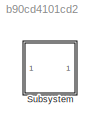
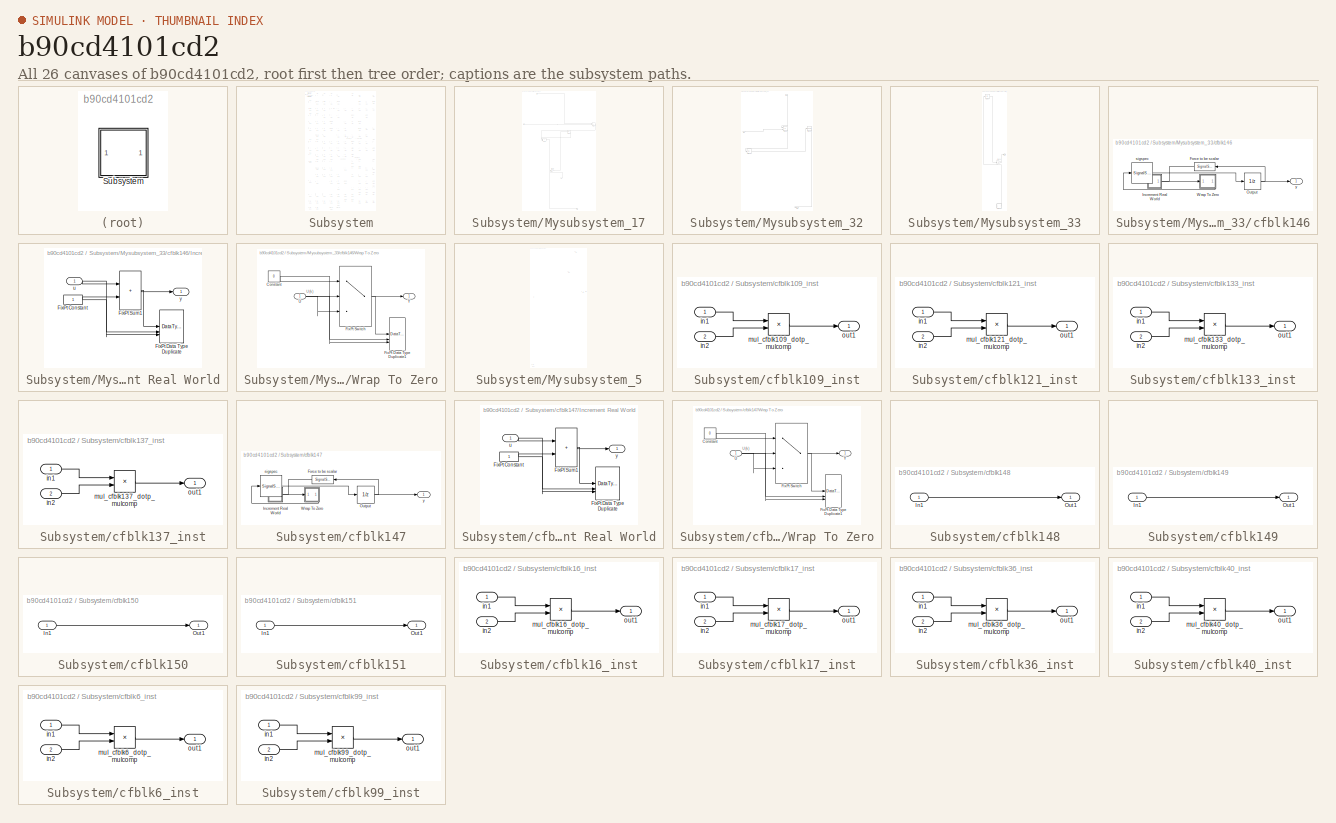
[diagram: thumbnail index - all 26 canvases of the model, root first then tree order]
MODEL slx_b90cd4101cd2
KIND model
CONFIG AbsTol = auto
CONFIG EnableMultiTasking = off
CONFIG FixedStep = auto
CONFIG MaxStep = auto
CONFIG MinStep = auto
CONFIG RelTol = 1e-3
CONFIG SampleTimeConstraint = Unconstrained
CONFIG SolverName = VariableStepAuto
CONFIG StartTime = 0.0
CONFIG StopTime = 10.0
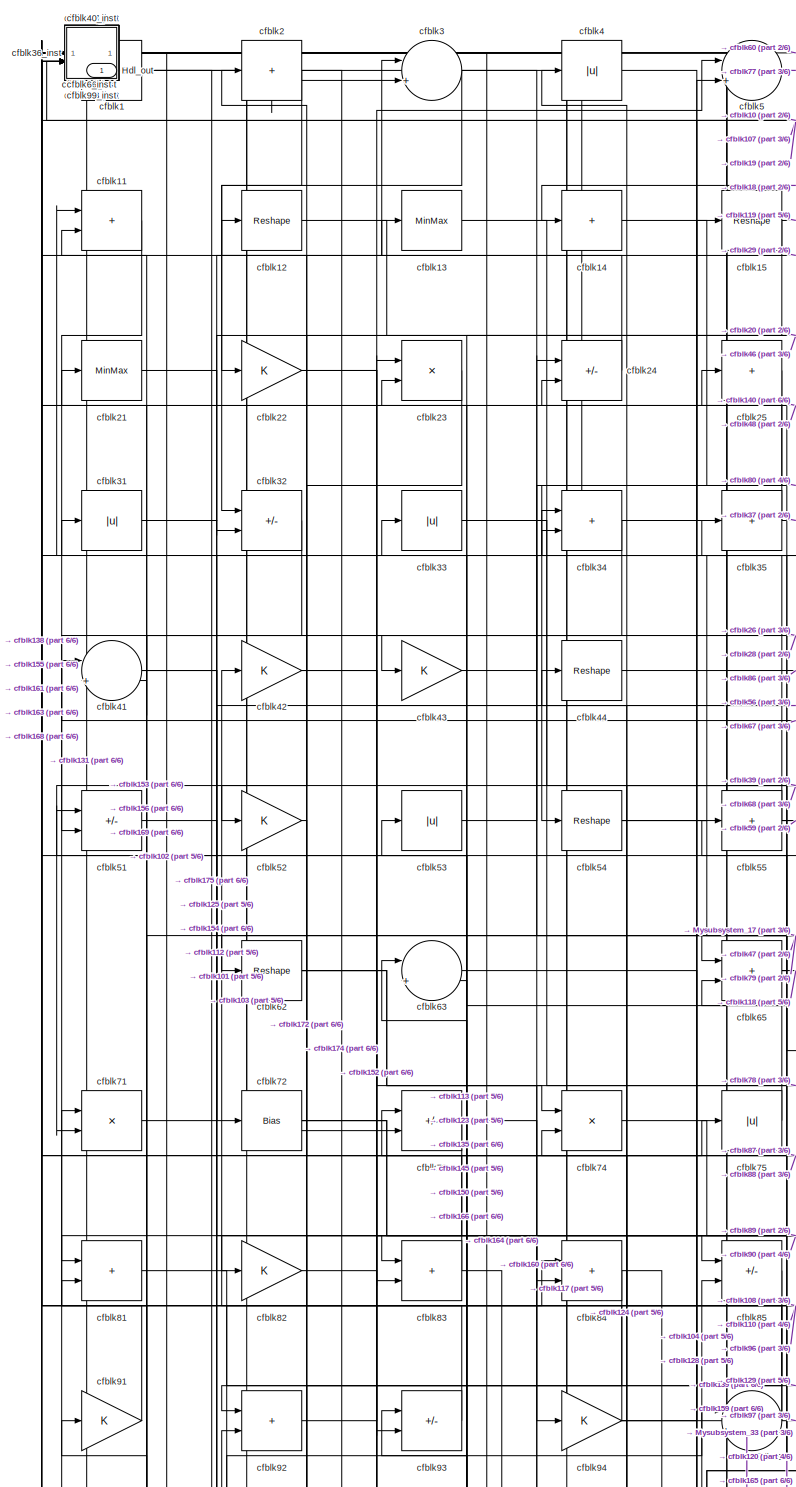
[diagram: Subsystem - part 1/6, top left region]
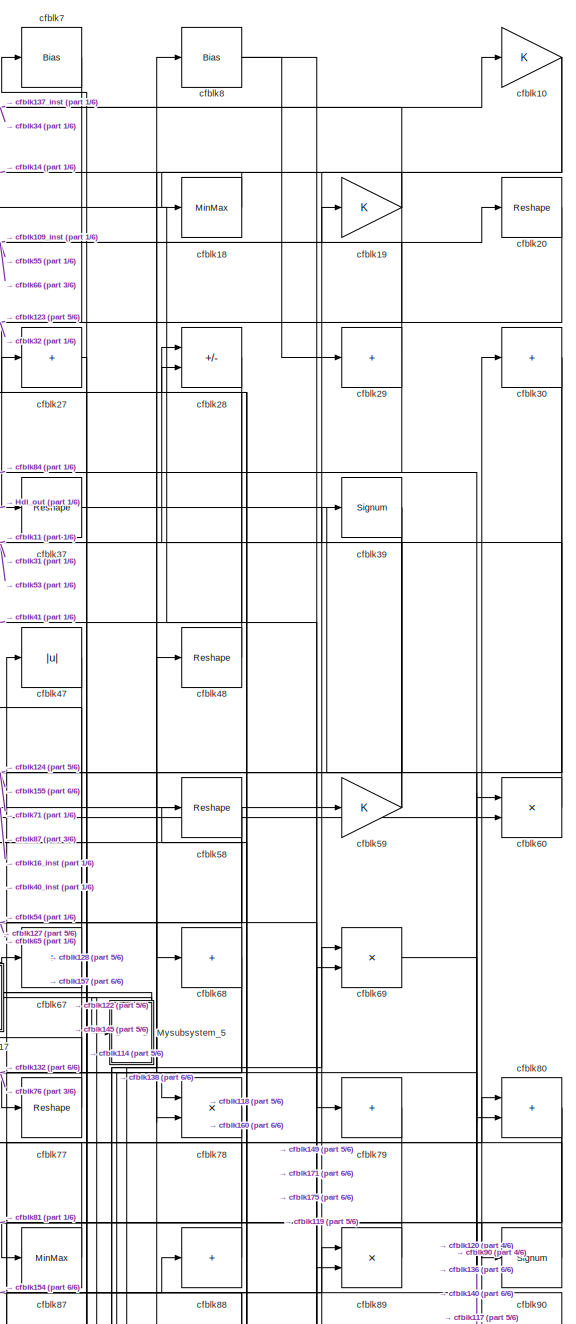
[diagram: Subsystem - part 2/6, top right region]
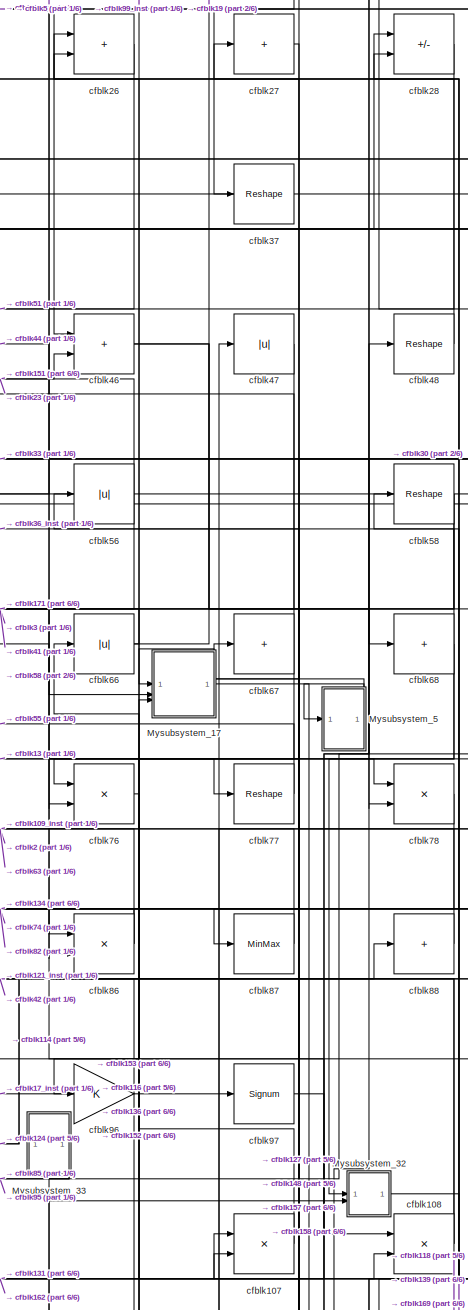
[diagram: Subsystem - part 3/6, central region]
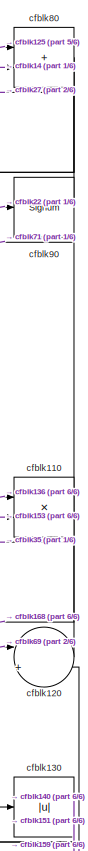
[diagram: Subsystem - part 4/6, middle right region]
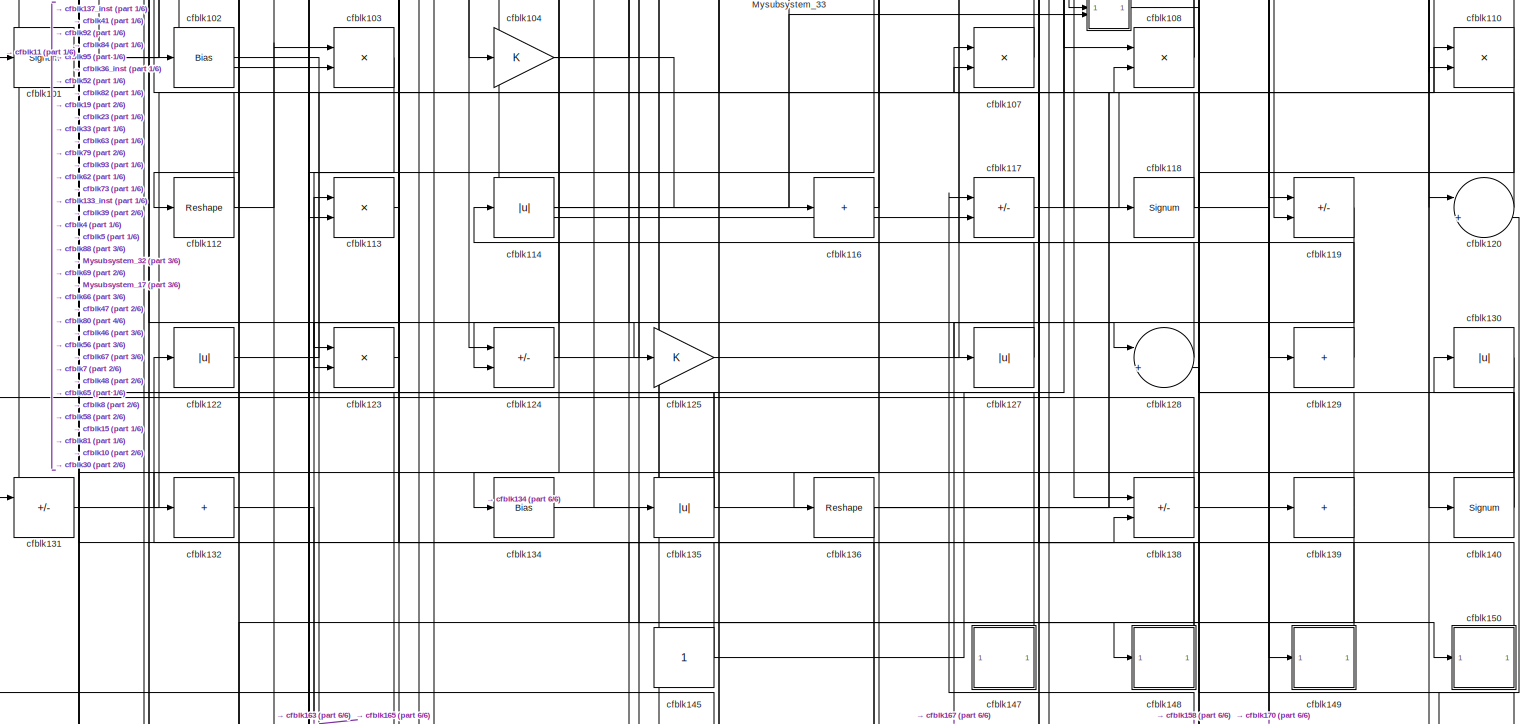
[diagram: Subsystem - part 5/6, full width, bottom band]
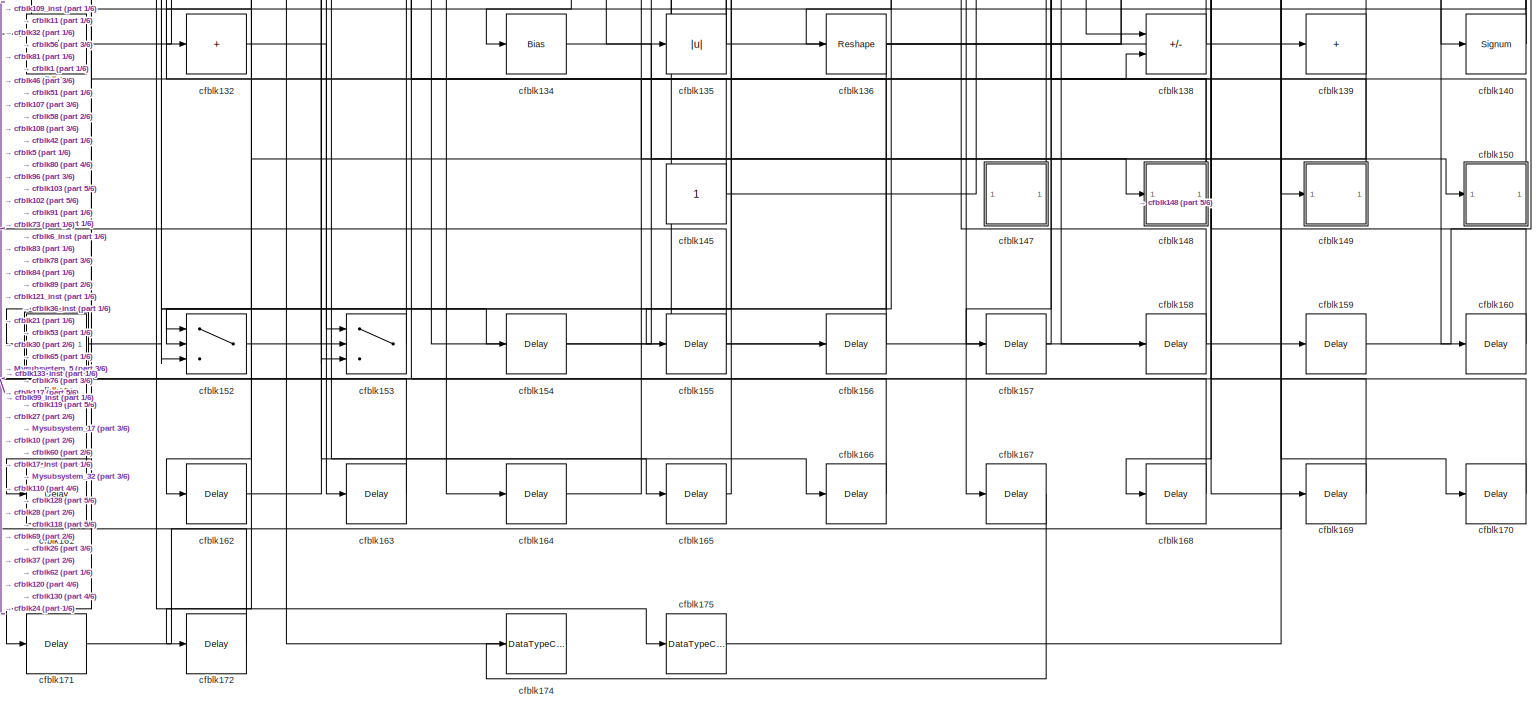
[diagram: Subsystem - part 6/6, full width, bottom band]
BLOCK [SubSystem] Subsystem
BLOCK [Outport] Subsystem/Hdl_out
  OutDataTypeStr = uint8
  SampleTime = 1
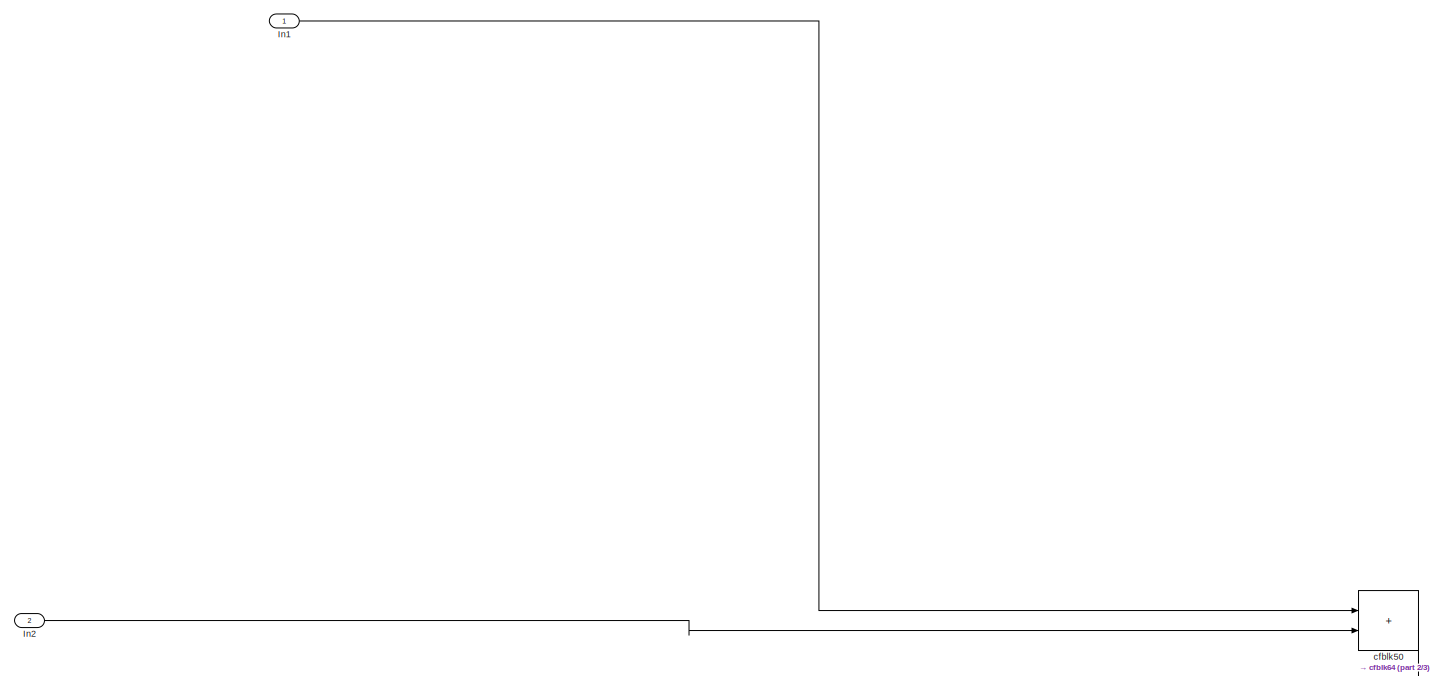
[diagram: Subsystem/Mysubsystem_17 - part 1/3, full width, top band]
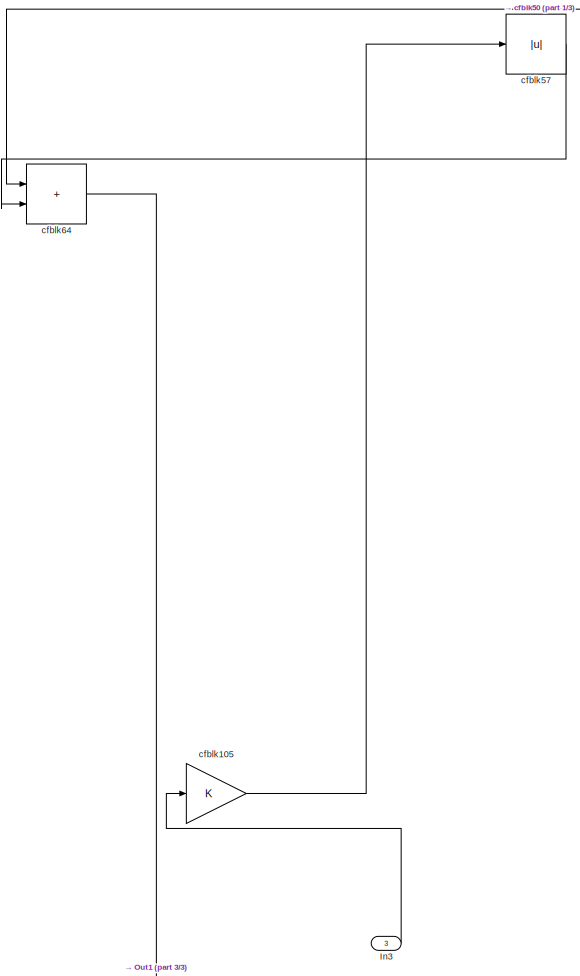
[diagram: Subsystem/Mysubsystem_17 - part 2/3, central region]
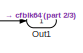
[diagram: Subsystem/Mysubsystem_17 - part 3/3, bottom right region]
BLOCK [SubSystem] Subsystem/Mysubsystem_17
BLOCK [Inport] Subsystem/Mysubsystem_17/In1
  OutDataTypeStr = uint8
  PortDimensions = 1
  SampleTime = 1
BLOCK [Inport] Subsystem/Mysubsystem_17/In2
  OutDataTypeStr = uint8
  Port = 2
  PortDimensions = 1
  SampleTime = 1
BLOCK [Inport] Subsystem/Mysubsystem_17/In3
  OutDataTypeStr = uint8
  Port = 3
  PortDimensions = 1
  SampleTime = 1
BLOCK [Outport] Subsystem/Mysubsystem_17/Out1
  SampleTime = 1
BLOCK [Gain] Subsystem/Mysubsystem_17/cfblk105
BLOCK [Sum] Subsystem/Mysubsystem_17/cfblk50
  IconShape = rectangular
BLOCK [Abs] Subsystem/Mysubsystem_17/cfblk57
  SaturateOnIntegerOverflow = off
BLOCK [Sum] Subsystem/Mysubsystem_17/cfblk64
  IconShape = rectangular
BLOCK [SubSystem] Subsystem/Mysubsystem_32
BLOCK [Inport] Subsystem/Mysubsystem_32/In1
  OutDataTypeStr = uint8
  PortDimensions = 1
  SampleTime = 1
BLOCK [Inport] Subsystem/Mysubsystem_32/In2
  OutDataTypeStr = uint8
  Port = 2
  PortDimensions = 1
  SampleTime = 1
BLOCK [Outport] Subsystem/Mysubsystem_32/Out1
  SampleTime = 1
BLOCK [Reshape] Subsystem/Mysubsystem_32/cfblk100
BLOCK [Abs] Subsystem/Mysubsystem_32/cfblk115
  SaturateOnIntegerOverflow = off
BLOCK [Sum] Subsystem/Mysubsystem_32/cfblk98
  IconShape = rectangular
  Inputs = +-
BLOCK [SubSystem] Subsystem/Mysubsystem_33
BLOCK [Outport] Subsystem/Mysubsystem_33/Out1
  SampleTime = 1
BLOCK [Gain] Subsystem/Mysubsystem_33/cfblk106
BLOCK [SubSystem] Subsystem/Mysubsystem_33/cfblk146
BLOCK [SignalSpecification] Subsystem/Mysubsystem_33/cfblk146/Force to be scalar
  Dimensions = 1
  DisableCoverage = on
BLOCK [SubSystem] Subsystem/Mysubsystem_33/cfblk146/Increment Real World
BLOCK [Constant] Subsystem/Mysubsystem_33/cfblk146/Increment Real World/FixPt Constant
  DisableCoverage = on
  OutDataTypeStr = Inherit: Inherit via back propagation
  SampleTime = -1
BLOCK [DataTypeDuplicate] Subsystem/Mysubsystem_33/cfblk146/Increment Real World/FixPt Data Type Duplicate
  DisableCoverage = on
  NumInputPorts = 3
BLOCK [Sum] Subsystem/Mysubsystem_33/cfblk146/Increment Real World/FixPt Sum1
  IconShape = rectangular
  InputSameDT = on
  LockScale = on
  OutDataTypeStr = Inherit: Inherit via back propagation
BLOCK [Inport] Subsystem/Mysubsystem_33/cfblk146/Increment Real World/u
  OutDataTypeStr = uint8
  SampleTime = 1
BLOCK [Outport] Subsystem/Mysubsystem_33/cfblk146/Increment Real World/y
  SampleTime = 1
BLOCK [UnitDelay] Subsystem/Mysubsystem_33/cfblk146/Output
  HasFrameUpgradeWarning = on
  InitialCondition = 0.0
  SampleTime = tsamp
BLOCK [SubSystem] Subsystem/Mysubsystem_33/cfblk146/Wrap To Zero
BLOCK [Constant] Subsystem/Mysubsystem_33/cfblk146/Wrap To Zero/Constant
  DisableCoverage = on
  OutDataTypeStr = Inherit: Inherit via back propagation
  SampleTime = -1
  Value = 0
BLOCK [DataTypeDuplicate] Subsystem/Mysubsystem_33/cfblk146/Wrap To Zero/FixPt Data Type Duplicate1
  DisableCoverage = on
  NumInputPorts = 3
BLOCK [Switch] Subsystem/Mysubsystem_33/cfblk146/Wrap To Zero/FixPt Switch
  Criteria = u2 > Threshold
  InputSameDT = off
  OutDataTypeStr = Inherit: Inherit via back propagation
  SaturateOnIntegerOverflow = off
  Threshold = Threshold
  ZeroCross = off
BLOCK [Inport] Subsystem/Mysubsystem_33/cfblk146/Wrap To Zero/U
  OutDataTypeStr = uint8
  SampleTime = 1
BLOCK [Outport] Subsystem/Mysubsystem_33/cfblk146/Wrap To Zero/Y
  SampleTime = 1
BLOCK [SignalSpecification] Subsystem/Mysubsystem_33/cfblk146/sigspec
  Dimensions = 1
  OutDataTypeStr = uint8
BLOCK [Outport] Subsystem/Mysubsystem_33/cfblk146/y
  SampleTime = 1
BLOCK [Abs] Subsystem/Mysubsystem_33/cfblk45
  SaturateOnIntegerOverflow = off
BLOCK [SubSystem] Subsystem/Mysubsystem_5
BLOCK [Inport] Subsystem/Mysubsystem_5/In1
  OutDataTypeStr = double
  PortDimensions = 1
  SampleTime = 1
BLOCK [Outport] Subsystem/Mysubsystem_5/Out1
  SampleTime = 1
BLOCK [Delay] Subsystem/Mysubsystem_5/cfblk173
  InputPortMap = u0
  SampleTime = 1
BLOCK [Gain] Subsystem/Mysubsystem_5/cfblk38
BLOCK [Sum] Subsystem/Mysubsystem_5/cfblk70
  IconShape = rectangular
  Inputs = +
BLOCK [Gain] Subsystem/Mysubsystem_5/cfblk9
BLOCK [Reference] Subsystem/cfblk1  REF=simulink/Logic and Bit
Operations/Bitwise
Operator
  LibrarySourceBlock = hdlsllib/Logic and Bit\nOperations/Bitwise\nOperator
  SourceBlock = simulink/Logic and Bit\nOperations/Bitwise\nOperator
  SourceType = Bitwise Operator
BLOCK [Gain] Subsystem/cfblk10
  OutDataTypeStr = uint8
BLOCK [Signum] Subsystem/cfblk101
BLOCK [Bias] Subsystem/cfblk102
  Bias = 0.0
  SaturateOnIntegerOverflow = off
BLOCK [Product] Subsystem/cfblk103
  Inputs = */
  OutDataTypeStr = uint8
  RndMeth = Zero
  SaturateOnIntegerOverflow = on
BLOCK [Gain] Subsystem/cfblk104
  OutDataTypeStr = uint8
BLOCK [Product] Subsystem/cfblk107
  Inputs = */
  OutDataTypeStr = uint8
  RndMeth = Zero
  SaturateOnIntegerOverflow = on
BLOCK [Product] Subsystem/cfblk108
  Inputs = */
  OutDataTypeStr = uint8
  RndMeth = Zero
  SaturateOnIntegerOverflow = on
BLOCK [SubSystem] Subsystem/cfblk109_inst
BLOCK [Inport] Subsystem/cfblk109_inst/in1
  OutDataTypeStr = uint8
  SampleTime = 1
BLOCK [Inport] Subsystem/cfblk109_inst/in2
  OutDataTypeStr = uint8
  Port = 2
  SampleTime = 1
BLOCK [Product] Subsystem/cfblk109_inst/mul_cfblk109_dotp_mulcomp
  Inputs = **
  OutDataTypeStr = uint8
  SampleTime = 1
BLOCK [Outport] Subsystem/cfblk109_inst/out1
  OutDataTypeStr = uint8
  SampleTime = 1
BLOCK [Sum] Subsystem/cfblk11
  IconShape = rectangular
  OutDataTypeStr = uint8
BLOCK [Product] Subsystem/cfblk110
  Inputs = */
  OutDataTypeStr = uint8
  RndMeth = Zero
  SaturateOnIntegerOverflow = on
BLOCK [Reshape] Subsystem/cfblk112
BLOCK [Product] Subsystem/cfblk113
  Inputs = */
  OutDataTypeStr = uint8
  RndMeth = Zero
  SaturateOnIntegerOverflow = on
BLOCK [Abs] Subsystem/cfblk114
  OutDataTypeStr = uint8
  SaturateOnIntegerOverflow = off
BLOCK [Sum] Subsystem/cfblk116
  IconShape = rectangular
  Inputs = +
  OutDataTypeStr = uint8
BLOCK [Sum] Subsystem/cfblk117
  IconShape = rectangular
  Inputs = +-
  OutDataTypeStr = uint8
BLOCK [Signum] Subsystem/cfblk118
BLOCK [Sum] Subsystem/cfblk119
  IconShape = rectangular
  Inputs = +-
  OutDataTypeStr = uint8
BLOCK [Reshape] Subsystem/cfblk12
BLOCK [Sum] Subsystem/cfblk120
  Inputs = |++
  OutDataTypeStr = uint8
BLOCK [SubSystem] Subsystem/cfblk121_inst
BLOCK [Inport] Subsystem/cfblk121_inst/in1
  OutDataTypeStr = uint8
  SampleTime = 1
BLOCK [Inport] Subsystem/cfblk121_inst/in2
  OutDataTypeStr = uint8
  Port = 2
  SampleTime = 1
BLOCK [Product] Subsystem/cfblk121_inst/mul_cfblk121_dotp_mulcomp
  Inputs = **
  OutDataTypeStr = uint8
  SampleTime = 1
BLOCK [Outport] Subsystem/cfblk121_inst/out1
  OutDataTypeStr = uint8
  SampleTime = 1
BLOCK [Abs] Subsystem/cfblk122
  OutDataTypeStr = uint8
  SaturateOnIntegerOverflow = off
BLOCK [Product] Subsystem/cfblk123
  Inputs = */
  OutDataTypeStr = uint8
  RndMeth = Zero
  SaturateOnIntegerOverflow = on
BLOCK [Sum] Subsystem/cfblk124
  IconShape = rectangular
  Inputs = +-
  OutDataTypeStr = uint8
BLOCK [Gain] Subsystem/cfblk125
  OutDataTypeStr = uint8
BLOCK [Abs] Subsystem/cfblk127
  OutDataTypeStr = uint8
  SaturateOnIntegerOverflow = off
BLOCK [Sum] Subsystem/cfblk128
  Inputs = |++
  OutDataTypeStr = uint8
BLOCK [Sum] Subsystem/cfblk129
  IconShape = rectangular
  Inputs = +
  OutDataTypeStr = uint8
BLOCK [MinMax] Subsystem/cfblk13
  OutDataTypeStr = uint8
BLOCK [Abs] Subsystem/cfblk130
  OutDataTypeStr = uint8
  SaturateOnIntegerOverflow = off
BLOCK [Sum] Subsystem/cfblk131
  IconShape = rectangular
  Inputs = +-
  OutDataTypeStr = uint8
BLOCK [Sum] Subsystem/cfblk132
  IconShape = rectangular
  Inputs = +
  OutDataTypeStr = uint8
BLOCK [SubSystem] Subsystem/cfblk133_inst
BLOCK [Inport] Subsystem/cfblk133_inst/in1
  OutDataTypeStr = uint8
  SampleTime = 1
BLOCK [Inport] Subsystem/cfblk133_inst/in2
  OutDataTypeStr = uint8
  Port = 2
  SampleTime = 1
BLOCK [Product] Subsystem/cfblk133_inst/mul_cfblk133_dotp_mulcomp
  Inputs = **
  OutDataTypeStr = uint8
  SampleTime = 1
BLOCK [Outport] Subsystem/cfblk133_inst/out1
  OutDataTypeStr = uint8
  SampleTime = 1
BLOCK [Bias] Subsystem/cfblk134
  Bias = 0.0
  SaturateOnIntegerOverflow = off
BLOCK [Abs] Subsystem/cfblk135
  OutDataTypeStr = uint8
  SaturateOnIntegerOverflow = off
BLOCK [Reshape] Subsystem/cfblk136
BLOCK [SubSystem] Subsystem/cfblk137_inst
BLOCK [Inport] Subsystem/cfblk137_inst/in1
  OutDataTypeStr = uint8
  SampleTime = 1
BLOCK [Inport] Subsystem/cfblk137_inst/in2
  OutDataTypeStr = uint8
  Port = 2
  SampleTime = 1
BLOCK [Product] Subsystem/cfblk137_inst/mul_cfblk137_dotp_mulcomp
  Inputs = **
  OutDataTypeStr = uint8
  SampleTime = 1
BLOCK [Outport] Subsystem/cfblk137_inst/out1
  OutDataTypeStr = uint8
  SampleTime = 1
BLOCK [Sum] Subsystem/cfblk138
  IconShape = rectangular
  Inputs = +-
  OutDataTypeStr = uint8
BLOCK [Sum] Subsystem/cfblk139
  IconShape = rectangular
  Inputs = +
  OutDataTypeStr = uint8
BLOCK [Sum] Subsystem/cfblk14
  IconShape = rectangular
  Inputs = +
  OutDataTypeStr = uint8
BLOCK [Signum] Subsystem/cfblk140
BLOCK [Constant] Subsystem/cfblk145
  OutDataTypeStr = uint8
  SampleTime = -1
BLOCK [SubSystem] Subsystem/cfblk147
BLOCK [SignalSpecification] Subsystem/cfblk147/Force to be scalar
  Dimensions = 1
  DisableCoverage = on
BLOCK [SubSystem] Subsystem/cfblk147/Increment Real World
BLOCK [Constant] Subsystem/cfblk147/Increment Real World/FixPt Constant
  DisableCoverage = on
  OutDataTypeStr = Inherit: Inherit via back propagation
  SampleTime = -1
BLOCK [DataTypeDuplicate] Subsystem/cfblk147/Increment Real World/FixPt Data Type Duplicate
  DisableCoverage = on
  NumInputPorts = 3
BLOCK [Sum] Subsystem/cfblk147/Increment Real World/FixPt Sum1
  IconShape = rectangular
  InputSameDT = on
  LockScale = on
  OutDataTypeStr = Inherit: Inherit via back propagation
BLOCK [Inport] Subsystem/cfblk147/Increment Real World/u
  OutDataTypeStr = uint16
  SampleTime = 1
BLOCK [Outport] Subsystem/cfblk147/Increment Real World/y
  SampleTime = 1
BLOCK [UnitDelay] Subsystem/cfblk147/Output
  HasFrameUpgradeWarning = on
  InitialCondition = 0.0
  SampleTime = tsamp
BLOCK [SubSystem] Subsystem/cfblk147/Wrap To Zero
BLOCK [Constant] Subsystem/cfblk147/Wrap To Zero/Constant
  DisableCoverage = on
  OutDataTypeStr = Inherit: Inherit via back propagation
  SampleTime = -1
  Value = 0
BLOCK [DataTypeDuplicate] Subsystem/cfblk147/Wrap To Zero/FixPt Data Type Duplicate1
  DisableCoverage = on
  NumInputPorts = 3
BLOCK [Switch] Subsystem/cfblk147/Wrap To Zero/FixPt Switch
  Criteria = u2 > Threshold
  InputSameDT = off
  OutDataTypeStr = Inherit: Inherit via back propagation
  SaturateOnIntegerOverflow = off
  Threshold = Threshold
  ZeroCross = off
BLOCK [Inport] Subsystem/cfblk147/Wrap To Zero/U
  OutDataTypeStr = uint16
  SampleTime = 1
BLOCK [Outport] Subsystem/cfblk147/Wrap To Zero/Y
  SampleTime = 1
BLOCK [SignalSpecification] Subsystem/cfblk147/sigspec
  Dimensions = 1
  OutDataTypeStr = uint16
BLOCK [Outport] Subsystem/cfblk147/y
  SampleTime = 1
BLOCK [SubSystem] Subsystem/cfblk148
BLOCK [Inport] Subsystem/cfblk148/In1
  OutDataTypeStr = uint8
  PortDimensions = 1
  SampleTime = 1
BLOCK [Outport] Subsystem/cfblk148/Out1
  SampleTime = 1
BLOCK [SubSystem] Subsystem/cfblk149
BLOCK [Inport] Subsystem/cfblk149/In1
  OutDataTypeStr = uint8
  PortDimensions = 1
  SampleTime = 1
BLOCK [Outport] Subsystem/cfblk149/Out1
  SampleTime = 1
BLOCK [Reshape] Subsystem/cfblk15
BLOCK [SubSystem] Subsystem/cfblk150
BLOCK [Inport] Subsystem/cfblk150/In1
  OutDataTypeStr = uint8
  PortDimensions = 1
  SampleTime = 1
BLOCK [Outport] Subsystem/cfblk150/Out1
  SampleTime = 1
BLOCK [SubSystem] Subsystem/cfblk151
BLOCK [Inport] Subsystem/cfblk151/In1
  OutDataTypeStr = uint8
  PortDimensions = 1
  SampleTime = 1
BLOCK [Outport] Subsystem/cfblk151/Out1
  SampleTime = 1
BLOCK [Switch] Subsystem/cfblk152
  InputSameDT = off
  OutDataTypeStr = uint8
  SaturateOnIntegerOverflow = off
BLOCK [Switch] Subsystem/cfblk153
  InputSameDT = off
  OutDataTypeStr = uint8
  SaturateOnIntegerOverflow = off
BLOCK [Delay] Subsystem/cfblk154
  InputPortMap = u0
  SampleTime = 1
BLOCK [Delay] Subsystem/cfblk155
  InputPortMap = u0
  SampleTime = 1
BLOCK [Delay] Subsystem/cfblk156
  InputPortMap = u0
  SampleTime = 1
BLOCK [Delay] Subsystem/cfblk157
  InputPortMap = u0
  SampleTime = 1
BLOCK [Delay] Subsystem/cfblk158
  InputPortMap = u0
  SampleTime = 1
BLOCK [Delay] Subsystem/cfblk159
  InputPortMap = u0
  SampleTime = 1
BLOCK [Delay] Subsystem/cfblk160
  InputPortMap = u0
  SampleTime = 1
BLOCK [Delay] Subsystem/cfblk161
  InputPortMap = u0
  SampleTime = 1
BLOCK [Delay] Subsystem/cfblk162
  InputPortMap = u0
  SampleTime = 1
BLOCK [Delay] Subsystem/cfblk163
  InputPortMap = u0
  SampleTime = 1
BLOCK [Delay] Subsystem/cfblk164
  InputPortMap = u0
  SampleTime = 1
BLOCK [Delay] Subsystem/cfblk165
  InputPortMap = u0
  SampleTime = 1
BLOCK [Delay] Subsystem/cfblk166
  InputPortMap = u0
  SampleTime = 1
BLOCK [Delay] Subsystem/cfblk167
  InputPortMap = u0
  SampleTime = 1
BLOCK [Delay] Subsystem/cfblk168
  InputPortMap = u0
  SampleTime = 1
BLOCK [Delay] Subsystem/cfblk169
  InputPortMap = u0
  SampleTime = 1
BLOCK [SubSystem] Subsystem/cfblk16_inst
BLOCK [Inport] Subsystem/cfblk16_inst/in1
  OutDataTypeStr = uint8
  SampleTime = 1
BLOCK [Inport] Subsystem/cfblk16_inst/in2
  OutDataTypeStr = uint8
  Port = 2
  SampleTime = 1
BLOCK [Product] Subsystem/cfblk16_inst/mul_cfblk16_dotp_mulcomp
  Inputs = **
  OutDataTypeStr = uint8
  SampleTime = 1
BLOCK [Outport] Subsystem/cfblk16_inst/out1
  OutDataTypeStr = uint8
  SampleTime = 1
BLOCK [Delay] Subsystem/cfblk170
  InputPortMap = u0
  SampleTime = 1
BLOCK [Delay] Subsystem/cfblk171
  InputPortMap = u0
  SampleTime = 1
BLOCK [Delay] Subsystem/cfblk172
  InputPortMap = u0
  SampleTime = 1
BLOCK [DataTypeConversion] Subsystem/cfblk174
  OutDataTypeStr = uint8
  RndMeth = Floor
  SaturateOnIntegerOverflow = off
BLOCK [DataTypeConversion] Subsystem/cfblk175
  OutDataTypeStr = uint8
  RndMeth = Floor
  SaturateOnIntegerOverflow = off
BLOCK [SubSystem] Subsystem/cfblk17_inst
BLOCK [Inport] Subsystem/cfblk17_inst/in1
  OutDataTypeStr = uint8
  SampleTime = 1
BLOCK [Inport] Subsystem/cfblk17_inst/in2
  OutDataTypeStr = uint8
  Port = 2
  SampleTime = 1
BLOCK [Product] Subsystem/cfblk17_inst/mul_cfblk17_dotp_mulcomp
  Inputs = **
  OutDataTypeStr = uint8
  SampleTime = 1
BLOCK [Outport] Subsystem/cfblk17_inst/out1
  OutDataTypeStr = uint8
  SampleTime = 1
BLOCK [MinMax] Subsystem/cfblk18
  OutDataTypeStr = uint8
BLOCK [Gain] Subsystem/cfblk19
  OutDataTypeStr = uint8
BLOCK [Sum] Subsystem/cfblk2
  IconShape = rectangular
  Inputs = +
  OutDataTypeStr = uint8
BLOCK [Reshape] Subsystem/cfblk20
BLOCK [MinMax] Subsystem/cfblk21
  OutDataTypeStr = uint8
BLOCK [Gain] Subsystem/cfblk22
  OutDataTypeStr = uint8
BLOCK [Product] Subsystem/cfblk23
  Inputs = */
  OutDataTypeStr = uint8
  RndMeth = Zero
  SaturateOnIntegerOverflow = on
BLOCK [Sum] Subsystem/cfblk24
  IconShape = rectangular
  Inputs = +-
  OutDataTypeStr = uint8
BLOCK [Sum] Subsystem/cfblk25
  IconShape = rectangular
  Inputs = +
  OutDataTypeStr = uint8
BLOCK [Sum] Subsystem/cfblk26
  IconShape = rectangular
  OutDataTypeStr = uint8
BLOCK [Sum] Subsystem/cfblk27
  IconShape = rectangular
  Inputs = +
  OutDataTypeStr = uint8
BLOCK [Sum] Subsystem/cfblk28
  IconShape = rectangular
  Inputs = +-
  OutDataTypeStr = uint8
BLOCK [Sum] Subsystem/cfblk29
  IconShape = rectangular
  Inputs = +
  OutDataTypeStr = uint8
BLOCK [Sum] Subsystem/cfblk3
  Inputs = |++
  OutDataTypeStr = uint8
BLOCK [Sum] Subsystem/cfblk30
  IconShape = rectangular
  Inputs = +
  OutDataTypeStr = uint8
BLOCK [Abs] Subsystem/cfblk31
  OutDataTypeStr = uint8
  SaturateOnIntegerOverflow = off
BLOCK [Sum] Subsystem/cfblk32
  IconShape = rectangular
  Inputs = +-
  OutDataTypeStr = uint8
BLOCK [Abs] Subsystem/cfblk33
  OutDataTypeStr = uint8
  SaturateOnIntegerOverflow = off
BLOCK [Sum] Subsystem/cfblk34
  IconShape = rectangular
  OutDataTypeStr = uint8
BLOCK [Sum] Subsystem/cfblk35
  IconShape = rectangular
  Inputs = +
  OutDataTypeStr = uint8
BLOCK [SubSystem] Subsystem/cfblk36_inst
BLOCK [Inport] Subsystem/cfblk36_inst/in1
  OutDataTypeStr = uint8
  SampleTime = 1
BLOCK [Inport] Subsystem/cfblk36_inst/in2
  OutDataTypeStr = uint8
  Port = 2
  SampleTime = 1
BLOCK [Product] Subsystem/cfblk36_inst/mul_cfblk36_dotp_mulcomp
  Inputs = **
  OutDataTypeStr = uint8
  SampleTime = 1
BLOCK [Outport] Subsystem/cfblk36_inst/out1
  OutDataTypeStr = uint8
  SampleTime = 1
BLOCK [Reshape] Subsystem/cfblk37
BLOCK [Signum] Subsystem/cfblk39
BLOCK [Abs] Subsystem/cfblk4
  OutDataTypeStr = uint8
  SaturateOnIntegerOverflow = off
BLOCK [SubSystem] Subsystem/cfblk40_inst
BLOCK [Inport] Subsystem/cfblk40_inst/in1
  OutDataTypeStr = uint8
  SampleTime = 1
BLOCK [Inport] Subsystem/cfblk40_inst/in2
  OutDataTypeStr = uint8
  Port = 2
  SampleTime = 1
BLOCK [Product] Subsystem/cfblk40_inst/mul_cfblk40_dotp_mulcomp
  Inputs = **
  OutDataTypeStr = uint8
  SampleTime = 1
BLOCK [Outport] Subsystem/cfblk40_inst/out1
  OutDataTypeStr = uint8
  SampleTime = 1
BLOCK [Sum] Subsystem/cfblk41
  Inputs = |++
  OutDataTypeStr = uint8
BLOCK [Gain] Subsystem/cfblk42
  OutDataTypeStr = uint8
BLOCK [Gain] Subsystem/cfblk43
  OutDataTypeStr = uint8
BLOCK [Reshape] Subsystem/cfblk44
BLOCK [Sum] Subsystem/cfblk46
  IconShape = rectangular
  OutDataTypeStr = uint8
BLOCK [Abs] Subsystem/cfblk47
  OutDataTypeStr = uint8
  SaturateOnIntegerOverflow = off
BLOCK [Reshape] Subsystem/cfblk48
BLOCK [Sum] Subsystem/cfblk5
  Inputs = |++
  OutDataTypeStr = uint8
BLOCK [Sum] Subsystem/cfblk51
  IconShape = rectangular
  Inputs = +-
  OutDataTypeStr = uint8
BLOCK [Gain] Subsystem/cfblk52
  OutDataTypeStr = uint8
BLOCK [Abs] Subsystem/cfblk53
  OutDataTypeStr = uint8
  SaturateOnIntegerOverflow = off
BLOCK [Reshape] Subsystem/cfblk54
BLOCK [Sum] Subsystem/cfblk55
  IconShape = rectangular
  Inputs = +
  OutDataTypeStr = uint8
BLOCK [Abs] Subsystem/cfblk56
  OutDataTypeStr = uint8
  SaturateOnIntegerOverflow = off
BLOCK [Reshape] Subsystem/cfblk58
BLOCK [Gain] Subsystem/cfblk59
  OutDataTypeStr = uint8
BLOCK [Product] Subsystem/cfblk60
  Inputs = */
  OutDataTypeStr = uint8
  RndMeth = Zero
  SaturateOnIntegerOverflow = on
BLOCK [Reshape] Subsystem/cfblk62
BLOCK [Sum] Subsystem/cfblk63
  Inputs = |++
  OutDataTypeStr = uint8
BLOCK [Sum] Subsystem/cfblk65
  IconShape = rectangular
  OutDataTypeStr = uint8
BLOCK [Abs] Subsystem/cfblk66
  OutDataTypeStr = uint8
  SaturateOnIntegerOverflow = off
BLOCK [Sum] Subsystem/cfblk67
  IconShape = rectangular
  Inputs = +
  OutDataTypeStr = uint8
BLOCK [Sum] Subsystem/cfblk68
  IconShape = rectangular
  Inputs = +
  OutDataTypeStr = uint8
BLOCK [Product] Subsystem/cfblk69
  Inputs = */
  OutDataTypeStr = uint8
  RndMeth = Zero
  SaturateOnIntegerOverflow = on
BLOCK [SubSystem] Subsystem/cfblk6_inst
BLOCK [Inport] Subsystem/cfblk6_inst/in1
  OutDataTypeStr = uint8
  SampleTime = 1
BLOCK [Inport] Subsystem/cfblk6_inst/in2
  OutDataTypeStr = uint8
  Port = 2
  SampleTime = 1
BLOCK [Product] Subsystem/cfblk6_inst/mul_cfblk6_dotp_mulcomp
  Inputs = **
  OutDataTypeStr = uint8
  SampleTime = 1
BLOCK [Outport] Subsystem/cfblk6_inst/out1
  OutDataTypeStr = uint8
  SampleTime = 1
BLOCK [Bias] Subsystem/cfblk7
  Bias = 0.0
  SaturateOnIntegerOverflow = off
BLOCK [Product] Subsystem/cfblk71
  Inputs = */
  OutDataTypeStr = uint8
  RndMeth = Zero
  SaturateOnIntegerOverflow = on
BLOCK [Bias] Subsystem/cfblk72
  Bias = 0.0
  SaturateOnIntegerOverflow = off
BLOCK [Sum] Subsystem/cfblk73
  IconShape = rectangular
  Inputs = +-
  OutDataTypeStr = uint8
BLOCK [Product] Subsystem/cfblk74
  Inputs = */
  OutDataTypeStr = uint8
  RndMeth = Zero
  SaturateOnIntegerOverflow = on
BLOCK [Abs] Subsystem/cfblk75
  OutDataTypeStr = uint8
  SaturateOnIntegerOverflow = off
BLOCK [Product] Subsystem/cfblk76
  Inputs = */
  OutDataTypeStr = uint8
  RndMeth = Zero
  SaturateOnIntegerOverflow = on
BLOCK [Reshape] Subsystem/cfblk77
BLOCK [Product] Subsystem/cfblk78
  Inputs = */
  OutDataTypeStr = uint8
  RndMeth = Zero
  SaturateOnIntegerOverflow = on
BLOCK [Sum] Subsystem/cfblk79
  IconShape = rectangular
  Inputs = +
  OutDataTypeStr = uint8
BLOCK [Bias] Subsystem/cfblk8
  Bias = 0.0
  SaturateOnIntegerOverflow = off
BLOCK [Sum] Subsystem/cfblk80
  IconShape = rectangular
  OutDataTypeStr = uint8
BLOCK [Sum] Subsystem/cfblk81
  IconShape = rectangular
  OutDataTypeStr = uint8
BLOCK [Gain] Subsystem/cfblk82
  OutDataTypeStr = uint8
BLOCK [Sum] Subsystem/cfblk83
  IconShape = rectangular
  OutDataTypeStr = uint8
BLOCK [Sum] Subsystem/cfblk84
  IconShape = rectangular
  OutDataTypeStr = uint8
BLOCK [Sum] Subsystem/cfblk85
  IconShape = rectangular
  Inputs = +-
  OutDataTypeStr = uint8
BLOCK [Product] Subsystem/cfblk86
  Inputs = */
  OutDataTypeStr = uint8
  RndMeth = Zero
  SaturateOnIntegerOverflow = on
BLOCK [MinMax] Subsystem/cfblk87
  OutDataTypeStr = uint8
BLOCK [Sum] Subsystem/cfblk88
  IconShape = rectangular
  Inputs = +
  OutDataTypeStr = uint8
BLOCK [Product] Subsystem/cfblk89
  Inputs = */
  OutDataTypeStr = uint8
  RndMeth = Zero
  SaturateOnIntegerOverflow = on
BLOCK [Signum] Subsystem/cfblk90
BLOCK [Gain] Subsystem/cfblk91
  OutDataTypeStr = uint8
BLOCK [Sum] Subsystem/cfblk92
  IconShape = rectangular
  OutDataTypeStr = uint8
BLOCK [Sum] Subsystem/cfblk93
  IconShape = rectangular
  Inputs = +-
  OutDataTypeStr = uint8
BLOCK [Gain] Subsystem/cfblk94
  OutDataTypeStr = uint8
BLOCK [Sum] Subsystem/cfblk95
  Inputs = |++
  OutDataTypeStr = uint8
BLOCK [Gain] Subsystem/cfblk96
  OutDataTypeStr = uint8
BLOCK [Signum] Subsystem/cfblk97
BLOCK [SubSystem] Subsystem/cfblk99_inst
BLOCK [Inport] Subsystem/cfblk99_inst/in1
  OutDataTypeStr = uint8
  SampleTime = 1
BLOCK [Inport] Subsystem/cfblk99_inst/in2
  OutDataTypeStr = uint8
  Port = 2
  SampleTime = 1
BLOCK [Product] Subsystem/cfblk99_inst/mul_cfblk99_dotp_mulcomp
  Inputs = **
  OutDataTypeStr = uint8
  SampleTime = 1
BLOCK [Outport] Subsystem/cfblk99_inst/out1
  OutDataTypeStr = uint8
  SampleTime = 1
ANNOTATION Subsystem/Mysubsystem_33/cfblk146/Wrap To Zero: U(k)
ANNOTATION Subsystem/cfblk147/Wrap To Zero: U(k)
LINE Subsystem/Mysubsystem_17/In1:1 -> Subsystem/Mysubsystem_17/cfblk50:1
LINE Subsystem/Mysubsystem_17/In2:1 -> Subsystem/Mysubsystem_17/cfblk50:2
LINE Subsystem/Mysubsystem_17/In3:1 -> Subsystem/Mysubsystem_17/cfblk105:1
LINE Subsystem/Mysubsystem_17/cfblk105:1 -> Subsystem/Mysubsystem_17/cfblk57:1
LINE Subsystem/Mysubsystem_17/cfblk50:1 -> Subsystem/Mysubsystem_17/cfblk64:1
LINE Subsystem/Mysubsystem_17/cfblk57:1 -> Subsystem/Mysubsystem_17/cfblk64:2
LINE Subsystem/Mysubsystem_17/cfblk64:1 -> Subsystem/Mysubsystem_17/Out1:1
LINE Subsystem/Mysubsystem_17:1 -> Subsystem/cfblk158:1
LINE Subsystem/Mysubsystem_32/In1:1 -> Subsystem/Mysubsystem_32/cfblk98:1
LINE Subsystem/Mysubsystem_32/In2:1 -> Subsystem/Mysubsystem_32/cfblk98:2
LINE Subsystem/Mysubsystem_32/cfblk100:1 -> Subsystem/Mysubsystem_32/Out1:1
LINE Subsystem/Mysubsystem_32/cfblk115:1 -> Subsystem/Mysubsystem_32/cfblk100:1
LINE Subsystem/Mysubsystem_32/cfblk98:1 -> Subsystem/Mysubsystem_32/cfblk115:1
LINE Subsystem/Mysubsystem_32:1 -> Subsystem/cfblk169:1
LINE Subsystem/Mysubsystem_33/cfblk106:1 -> Subsystem/Mysubsystem_33/Out1:1
LINE Subsystem/Mysubsystem_33/cfblk146:1 -> Subsystem/Mysubsystem_33/cfblk45:1
LINE Subsystem/Mysubsystem_33/cfblk45:1 -> Subsystem/Mysubsystem_33/cfblk106:1
NET Subsystem/Mysubsystem_33:1 -> Subsystem/cfblk85:2, Subsystem/cfblk95:2
LINE Subsystem/Mysubsystem_5/In1:1 -> Subsystem/Mysubsystem_5/cfblk173:1
LINE Subsystem/Mysubsystem_5/cfblk173:1 -> Subsystem/Mysubsystem_5/cfblk9:1
LINE Subsystem/Mysubsystem_5/cfblk38:1 -> Subsystem/Mysubsystem_5/cfblk70:1
LINE Subsystem/Mysubsystem_5/cfblk70:1 -> Subsystem/Mysubsystem_5/Out1:1
LINE Subsystem/Mysubsystem_5/cfblk9:1 -> Subsystem/Mysubsystem_5/cfblk38:1
NET Subsystem/Mysubsystem_5:1 -> Subsystem/Mysubsystem_5:1, Subsystem/cfblk152:2
NET Subsystem/cfblk101:1 -> Subsystem/cfblk84:1, Subsystem/cfblk95:1
LINE Subsystem/cfblk102:1 -> Subsystem/cfblk165:1
LINE Subsystem/cfblk103:1 -> Subsystem/cfblk163:1
NET Subsystem/cfblk104:1 -> Subsystem/cfblk116:1, Subsystem/cfblk5:2
LINE Subsystem/cfblk107:1 -> Subsystem/cfblk99_inst:2
NET Subsystem/cfblk108:1 -> Subsystem/cfblk121_inst:2, Subsystem/cfblk42:1
LINE Subsystem/cfblk109_inst/in1:1 -> Subsystem/cfblk109_inst/mul_cfblk109_dotp_mulcomp:1
LINE Subsystem/cfblk109_inst/in2:1 -> Subsystem/cfblk109_inst/mul_cfblk109_dotp_mulcomp:2
LINE Subsystem/cfblk109_inst/mul_cfblk109_dotp_mulcomp:1 -> Subsystem/cfblk109_inst/out1:1
LINE Subsystem/cfblk109_inst:1 -> Subsystem/cfblk131:2
NET Subsystem/cfblk10:1 -> Subsystem/cfblk119:2, Subsystem/cfblk138:1
NET Subsystem/cfblk110:1 -> Subsystem/cfblk168:1, Subsystem/cfblk71:1
NET Subsystem/cfblk112:1 -> Subsystem/cfblk103:1, Subsystem/cfblk92:2
LINE Subsystem/cfblk113:1 -> Subsystem/cfblk23:2
NET Subsystem/cfblk114:1 -> Subsystem/Mysubsystem_32:2, Subsystem/cfblk69:1
LINE Subsystem/cfblk116:1 -> Subsystem/Mysubsystem_17:3
LINE Subsystem/cfblk117:1 -> Subsystem/cfblk30:1
NET Subsystem/cfblk118:1 -> Subsystem/cfblk170:1, Subsystem/cfblk58:1, Subsystem/cfblk66:1
LINE Subsystem/cfblk119:1 -> Subsystem/cfblk167:1
LINE Subsystem/cfblk11:1 -> Subsystem/cfblk101:1
LINE Subsystem/cfblk120:1 -> Subsystem/cfblk35:1
LINE Subsystem/cfblk121_inst/in1:1 -> Subsystem/cfblk121_inst/mul_cfblk121_dotp_mulcomp:1
LINE Subsystem/cfblk121_inst/in2:1 -> Subsystem/cfblk121_inst/mul_cfblk121_dotp_mulcomp:2
LINE Subsystem/cfblk121_inst/mul_cfblk121_dotp_mulcomp:1 -> Subsystem/cfblk121_inst/out1:1
LINE Subsystem/cfblk121_inst:1 -> Subsystem/cfblk159:1
LINE Subsystem/cfblk122:1 -> Subsystem/cfblk48:1
LINE Subsystem/cfblk123:1 -> Subsystem/cfblk33:1
NET Subsystem/cfblk124:1 -> Subsystem/cfblk4:1, Subsystem/cfblk88:1
LINE Subsystem/cfblk125:1 -> Subsystem/cfblk80:1
LINE Subsystem/cfblk127:1 -> Subsystem/cfblk47:1
LINE Subsystem/cfblk128:1 -> Subsystem/cfblk7:1
LINE Subsystem/cfblk129:1 -> Subsystem/cfblk114:1
LINE Subsystem/cfblk12:1 -> Subsystem/cfblk46:1
LINE Subsystem/cfblk130:1 -> Subsystem/cfblk151:1
LINE Subsystem/cfblk131:1 -> Subsystem/cfblk107:1
LINE Subsystem/cfblk132:1 -> Subsystem/cfblk153:1
LINE Subsystem/cfblk133_inst/in1:1 -> Subsystem/cfblk133_inst/mul_cfblk133_dotp_mulcomp:1
LINE Subsystem/cfblk133_inst/in2:1 -> Subsystem/cfblk133_inst/mul_cfblk133_dotp_mulcomp:2
LINE Subsystem/cfblk133_inst/mul_cfblk133_dotp_mulcomp:1 -> Subsystem/cfblk133_inst/out1:1
NET Subsystem/cfblk133_inst:1 -> Subsystem/cfblk117:2, Subsystem/cfblk6_inst:2
LINE Subsystem/cfblk134:1 -> Subsystem/cfblk148:1
NET Subsystem/cfblk135:1 -> Subsystem/cfblk21:1, Subsystem/cfblk53:1
NET Subsystem/cfblk136:1 -> Subsystem/cfblk110:1, Subsystem/cfblk152:3, Subsystem/cfblk60:1
LINE Subsystem/cfblk137_inst/in1:1 -> Subsystem/cfblk137_inst/mul_cfblk137_dotp_mulcomp:1
LINE Subsystem/cfblk137_inst/in2:1 -> Subsystem/cfblk137_inst/mul_cfblk137_dotp_mulcomp:2
LINE Subsystem/cfblk137_inst/mul_cfblk137_dotp_mulcomp:1 -> Subsystem/cfblk137_inst/out1:1
LINE Subsystem/cfblk137_inst:1 -> Subsystem/cfblk102:1
LINE Subsystem/cfblk138:1 -> Subsystem/cfblk17_inst:1
NET Subsystem/cfblk139:1 -> Subsystem/cfblk162:1, Subsystem/cfblk26:1
LINE Subsystem/cfblk13:1 -> Subsystem/cfblk78:1
NET Subsystem/cfblk140:1 -> Subsystem/cfblk130:1, Subsystem/cfblk24:2
NET Subsystem/cfblk145:1 -> Subsystem/cfblk63:2, Subsystem/cfblk8:1
LINE Subsystem/cfblk147:1 -> Subsystem/cfblk113:1
LINE Subsystem/cfblk148/In1:1 -> Subsystem/cfblk148/Out1:1
NET Subsystem/cfblk148:1 -> Subsystem/cfblk56:1, Subsystem/cfblk67:1
LINE Subsystem/cfblk149/In1:1 -> Subsystem/cfblk149/Out1:1
LINE Subsystem/cfblk149:1 -> Subsystem/cfblk122:1
LINE Subsystem/cfblk14:1 -> Subsystem/cfblk80:2
LINE Subsystem/cfblk150/In1:1 -> Subsystem/cfblk150/Out1:1
LINE Subsystem/cfblk150:1 -> Subsystem/cfblk93:1
LINE Subsystem/cfblk151/In1:1 -> Subsystem/cfblk151/Out1:1
LINE Subsystem/cfblk151:1 -> Subsystem/cfblk46:2
LINE Subsystem/cfblk152:1 -> Subsystem/cfblk5:1
LINE Subsystem/cfblk153:1 -> Subsystem/cfblk91:1
LINE Subsystem/cfblk154:1 -> Subsystem/cfblk89:1
LINE Subsystem/cfblk155:1 -> Subsystem/cfblk16_inst:2
LINE Subsystem/cfblk156:1 -> Subsystem/cfblk81:2
LINE Subsystem/cfblk157:1 -> Subsystem/cfblk107:2
LINE Subsystem/cfblk158:1 -> Subsystem/cfblk117:1
LINE Subsystem/cfblk159:1 -> Subsystem/cfblk120:2
NET Subsystem/cfblk15:1 -> Subsystem/cfblk119:1, Subsystem/cfblk52:1
LINE Subsystem/cfblk160:1 -> Subsystem/cfblk28:1
LINE Subsystem/cfblk161:1 -> Subsystem/cfblk17_inst:2
LINE Subsystem/cfblk162:1 -> Subsystem/cfblk108:2
LINE Subsystem/cfblk163:1 -> Subsystem/cfblk133_inst:2
LINE Subsystem/cfblk164:1 -> Subsystem/cfblk138:2
LINE Subsystem/cfblk165:1 -> Subsystem/cfblk65:2
LINE Subsystem/cfblk166:1 -> Subsystem/cfblk73:1
LINE Subsystem/cfblk167:1 -> Subsystem/cfblk174:1
LINE Subsystem/cfblk168:1 -> Subsystem/cfblk99_inst:1
LINE Subsystem/cfblk169:1 -> Subsystem/cfblk11:2
LINE Subsystem/cfblk16_inst/in1:1 -> Subsystem/cfblk16_inst/mul_cfblk16_dotp_mulcomp:1
LINE Subsystem/cfblk16_inst/in2:1 -> Subsystem/cfblk16_inst/mul_cfblk16_dotp_mulcomp:2
LINE Subsystem/cfblk16_inst/mul_cfblk16_dotp_mulcomp:1 -> Subsystem/cfblk16_inst/out1:1
LINE Subsystem/cfblk16_inst:1 -> Subsystem/cfblk59:1
LINE Subsystem/cfblk170:1 -> Subsystem/cfblk128:2
LINE Subsystem/cfblk171:1 -> Subsystem/cfblk69:2
LINE Subsystem/cfblk172:1 -> Subsystem/cfblk131:1
LINE Subsystem/cfblk174:1 -> Subsystem/cfblk1:1
LINE Subsystem/cfblk175:1 -> Subsystem/cfblk89:2
LINE Subsystem/cfblk17_inst/in1:1 -> Subsystem/cfblk17_inst/mul_cfblk17_dotp_mulcomp:1
LINE Subsystem/cfblk17_inst/in2:1 -> Subsystem/cfblk17_inst/mul_cfblk17_dotp_mulcomp:2
LINE Subsystem/cfblk17_inst/mul_cfblk17_dotp_mulcomp:1 -> Subsystem/cfblk17_inst/out1:1
LINE Subsystem/cfblk17_inst:1 -> Subsystem/cfblk97:1
LINE Subsystem/cfblk18:1 -> Subsystem/cfblk14:1
NET Subsystem/cfblk19:1 -> Subsystem/cfblk123:2, Subsystem/cfblk137_inst:2, Subsystem/cfblk18:1
LINE Subsystem/cfblk1:1 -> Subsystem/cfblk175:1
LINE Subsystem/cfblk20:1 -> Subsystem/cfblk32:2
LINE Subsystem/cfblk21:1 -> Subsystem/cfblk72:1
NET Subsystem/cfblk22:1 -> Subsystem/cfblk90:1, Subsystem/cfblk93:2
LINE Subsystem/cfblk23:1 -> Subsystem/cfblk62:1
LINE Subsystem/cfblk24:1 -> Subsystem/cfblk3:1
LINE Subsystem/cfblk25:1 -> Subsystem/cfblk54:1
LINE Subsystem/cfblk26:1 -> Subsystem/cfblk51:2
LINE Subsystem/cfblk27:1 -> Subsystem/cfblk157:1
LINE Subsystem/cfblk28:1 -> Subsystem/cfblk41:2
NET Subsystem/cfblk29:1 -> Subsystem/cfblk109_inst:1, Subsystem/cfblk84:2
LINE Subsystem/cfblk2:1 -> Subsystem/cfblk32:1
NET Subsystem/cfblk30:1 -> Subsystem/cfblk155:1, Subsystem/cfblk87:1
NET Subsystem/cfblk31:1 -> Subsystem/cfblk13:1, Subsystem/cfblk83:1
LINE Subsystem/cfblk32:1 -> Subsystem/cfblk161:1
LINE Subsystem/cfblk33:1 -> Subsystem/cfblk68:1
NET Subsystem/cfblk34:1 -> Subsystem/cfblk10:1, Subsystem/cfblk43:1
LINE Subsystem/cfblk35:1 -> Subsystem/cfblk16_inst:1
LINE Subsystem/cfblk36_inst/in1:1 -> Subsystem/cfblk36_inst/mul_cfblk36_dotp_mulcomp:1
LINE Subsystem/cfblk36_inst/in2:1 -> Subsystem/cfblk36_inst/mul_cfblk36_dotp_mulcomp:2
LINE Subsystem/cfblk36_inst/mul_cfblk36_dotp_mulcomp:1 -> Subsystem/cfblk36_inst/out1:1
NET Subsystem/cfblk36_inst:1 -> Subsystem/cfblk103:2, Subsystem/cfblk139:1
NET Subsystem/cfblk37:1 -> Subsystem/Hdl_out:1, Subsystem/cfblk140:1
NET Subsystem/cfblk39:1 -> Subsystem/cfblk124:2, Subsystem/cfblk71:2
NET Subsystem/cfblk3:1 -> Subsystem/Mysubsystem_17:1, Subsystem/cfblk22:1
LINE Subsystem/cfblk40_inst/in1:1 -> Subsystem/cfblk40_inst/mul_cfblk40_dotp_mulcomp:1
LINE Subsystem/cfblk40_inst/in2:1 -> Subsystem/cfblk40_inst/mul_cfblk40_dotp_mulcomp:2
LINE Subsystem/cfblk40_inst/mul_cfblk40_dotp_mulcomp:1 -> Subsystem/cfblk40_inst/out1:1
NET Subsystem/cfblk40_inst:1 -> Subsystem/cfblk121_inst:1, Subsystem/cfblk60:2
NET Subsystem/cfblk41:1 -> Subsystem/Mysubsystem_17:2, Subsystem/cfblk125:1
NET Subsystem/cfblk42:1 -> Subsystem/cfblk166:1, Subsystem/cfblk74:1
LINE Subsystem/cfblk43:1 -> Subsystem/cfblk24:1
LINE Subsystem/cfblk44:1 -> Subsystem/cfblk86:1
NET Subsystem/cfblk46:1 -> Subsystem/cfblk127:1, Subsystem/cfblk78:2
LINE Subsystem/cfblk47:1 -> Subsystem/cfblk65:1
LINE Subsystem/cfblk48:1 -> Subsystem/cfblk40_inst:1
LINE Subsystem/cfblk4:1 -> Subsystem/cfblk150:1
LINE Subsystem/cfblk51:1 -> Subsystem/cfblk154:1
LINE Subsystem/cfblk52:1 -> Subsystem/cfblk112:1
LINE Subsystem/cfblk53:1 -> Subsystem/cfblk39:1
NET Subsystem/cfblk54:1 -> Subsystem/cfblk28:2, Subsystem/cfblk79:1
NET Subsystem/cfblk55:1 -> Subsystem/cfblk20:1, Subsystem/cfblk36_inst:2
NET Subsystem/cfblk56:1 -> Subsystem/cfblk171:1, Subsystem/cfblk23:1
NET Subsystem/cfblk58:1 -> Subsystem/cfblk132:1, Subsystem/cfblk76:1
NET Subsystem/cfblk59:1 -> Subsystem/cfblk11:1, Subsystem/cfblk31:1
LINE Subsystem/cfblk5:1 -> Subsystem/cfblk77:1
LINE Subsystem/cfblk60:1 -> Subsystem/cfblk34:1
NET Subsystem/cfblk62:1 -> Subsystem/cfblk104:1, Subsystem/cfblk160:1, Subsystem/cfblk83:2
LINE Subsystem/cfblk63:1 -> Subsystem/cfblk128:1
NET Subsystem/cfblk65:1 -> Subsystem/cfblk118:1, Subsystem/cfblk25:1
NET Subsystem/cfblk66:1 -> Subsystem/cfblk19:1, Subsystem/cfblk26:2
NET Subsystem/cfblk67:1 -> Subsystem/cfblk41:1, Subsystem/cfblk96:1
NET Subsystem/cfblk68:1 -> Subsystem/Mysubsystem_32:1, Subsystem/cfblk36_inst:1, Subsystem/cfblk76:2
LINE Subsystem/cfblk69:1 -> Subsystem/cfblk120:1
LINE Subsystem/cfblk6_inst/in1:1 -> Subsystem/cfblk6_inst/mul_cfblk6_dotp_mulcomp:1
LINE Subsystem/cfblk6_inst/in2:1 -> Subsystem/cfblk6_inst/mul_cfblk6_dotp_mulcomp:2
LINE Subsystem/cfblk6_inst/mul_cfblk6_dotp_mulcomp:1 -> Subsystem/cfblk6_inst/out1:1
LINE Subsystem/cfblk6_inst:1 -> Subsystem/cfblk156:1
LINE Subsystem/cfblk71:1 -> Subsystem/cfblk34:2
NET Subsystem/cfblk72:1 -> Subsystem/cfblk85:1, Subsystem/cfblk94:1
NET Subsystem/cfblk73:1 -> Subsystem/cfblk124:1, Subsystem/cfblk172:1
LINE Subsystem/cfblk74:1 -> Subsystem/cfblk86:2
LINE Subsystem/cfblk75:1 -> Subsystem/cfblk51:1
LINE Subsystem/cfblk76:1 -> Subsystem/cfblk136:1
LINE Subsystem/cfblk77:1 -> Subsystem/cfblk55:1
LINE Subsystem/cfblk78:1 -> Subsystem/cfblk134:1
LINE Subsystem/cfblk79:1 -> Subsystem/cfblk123:1
LINE Subsystem/cfblk7:1 -> Subsystem/cfblk37:1
NET Subsystem/cfblk80:1 -> Subsystem/cfblk110:2, Subsystem/cfblk153:2
LINE Subsystem/cfblk81:1 -> Subsystem/cfblk129:1
LINE Subsystem/cfblk82:1 -> Subsystem/cfblk113:2
NET Subsystem/cfblk83:1 -> Subsystem/cfblk137_inst:1, Subsystem/cfblk164:1
NET Subsystem/cfblk84:1 -> Subsystem/cfblk135:1, Subsystem/cfblk152:1
LINE Subsystem/cfblk85:1 -> Subsystem/cfblk92:1
NET Subsystem/cfblk86:1 -> Subsystem/cfblk2:1, Subsystem/cfblk82:1
LINE Subsystem/cfblk87:1 -> Subsystem/cfblk109_inst:2
LINE Subsystem/cfblk88:1 -> Subsystem/cfblk63:1
LINE Subsystem/cfblk89:1 -> Subsystem/cfblk81:1
NET Subsystem/cfblk8:1 -> Subsystem/cfblk149:1, Subsystem/cfblk29:1
LINE Subsystem/cfblk90:1 -> Subsystem/cfblk27:1
LINE Subsystem/cfblk91:1 -> Subsystem/cfblk40_inst:2
LINE Subsystem/cfblk92:1 -> Subsystem/cfblk75:1
LINE Subsystem/cfblk93:1 -> Subsystem/cfblk6_inst:1
NET Subsystem/cfblk94:1 -> Subsystem/cfblk133_inst:1, Subsystem/cfblk15:1
NET Subsystem/cfblk95:1 -> Subsystem/cfblk12:1, Subsystem/cfblk74:2
NET Subsystem/cfblk96:1 -> Subsystem/cfblk153:3, Subsystem/cfblk44:1
LINE Subsystem/cfblk97:1 -> Subsystem/cfblk108:1
LINE Subsystem/cfblk99_inst/in1:1 -> Subsystem/cfblk99_inst/mul_cfblk99_dotp_mulcomp:1
LINE Subsystem/cfblk99_inst/in2:1 -> Subsystem/cfblk99_inst/mul_cfblk99_dotp_mulcomp:2
LINE Subsystem/cfblk99_inst/mul_cfblk99_dotp_mulcomp:1 -> Subsystem/cfblk99_inst/out1:1
NET Subsystem/cfblk99_inst:1 -> Subsystem/cfblk3:2, Subsystem/cfblk73:2
note: NET lines group one-source signal fan-out (src -> all destinations, sorted); 1:1 wires keep LINE
